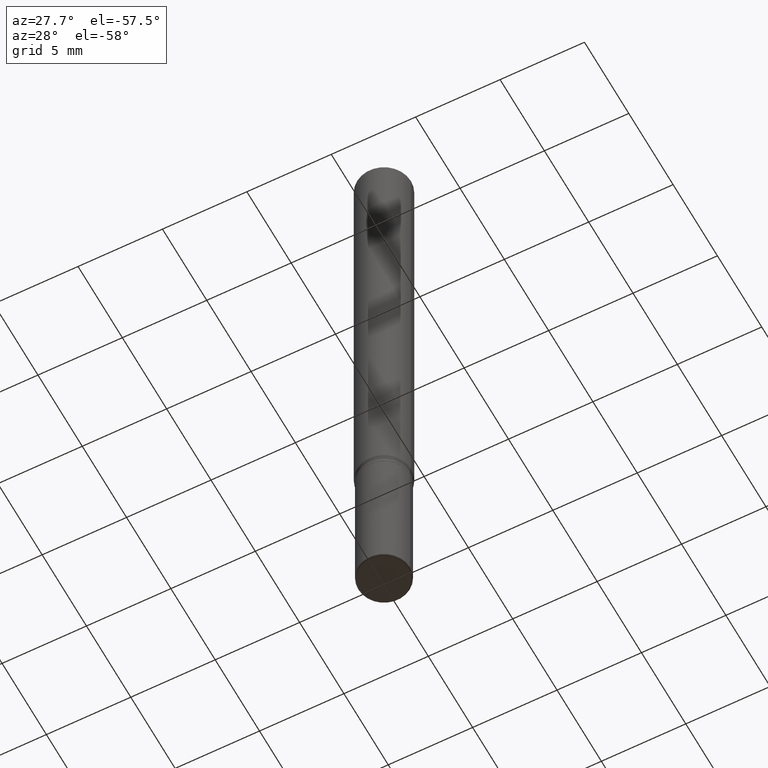
[diagram: clean part render]
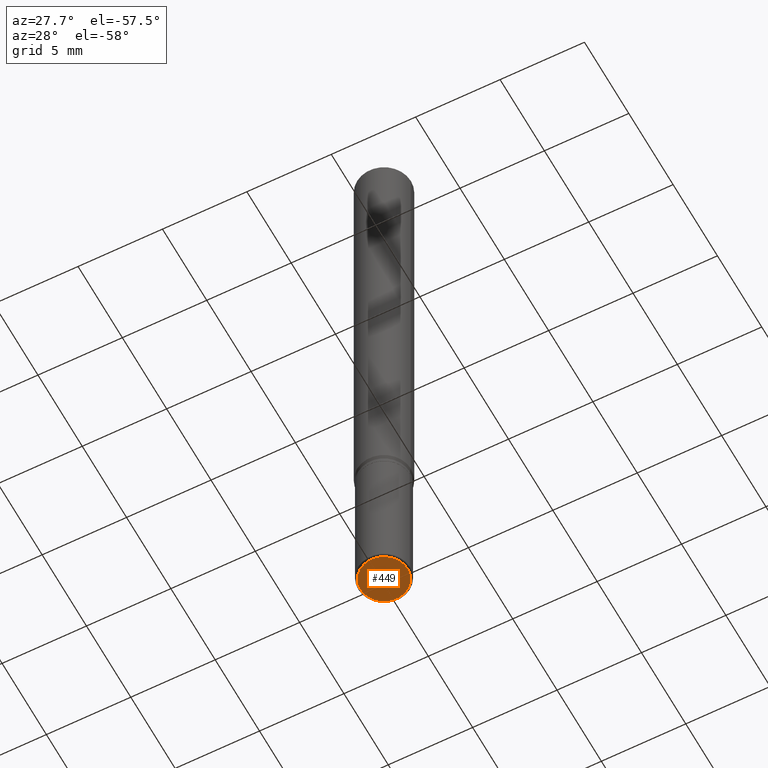
[diagram: same view with one face highlighted and labeled with its STEP entity id]
A machine part, auxiliary view. The second image highlights one B-rep face of the part: STEP entity #449.
In plain terms, the highlighted planar face has unit normal (-0, 0, 1).
Its self-contained STEP definition (entity closure, byte-faithful):
#10 = DIRECTION ( 'NONE',  ( 1.000000000000000000, -6.982962677686263555E-15, 0.000000000000000000 ) ) ;
#31 = DIRECTION ( 'NONE',  ( -2.445468806185136597E-29, 3.491481338843145583E-15, 1.000000000000000000 ) ) ;
#49 = AXIS2_PLACEMENT_3D ( 'NONE', #233, #259, #10 ) ;
#54 = FACE_OUTER_BOUND ( 'NONE', #419, .T. ) ;
#57 = CARTESIAN_POINT ( 'NONE',  ( 3.582686580359767159E-29, -5.359686688179454114E-15, -1.500000000000000444 ) ) ;
#118 = CARTESIAN_POINT ( 'NONE',  ( 3.668203209277706016E-29, -5.237222008264719754E-15, -1.500000000000000444 ) ) ;
#137 = DIRECTION ( 'NONE',  ( -2.438088387897960049E-29, 3.491481338843145188E-15, 1.000000000000000000 ) ) ;
#139 = CIRCLE ( 'NONE', #49, 0.05499999999999999334 ) ;
#173 = EDGE_CURVE ( 'NONE', #458, #284, #471, .T. ) ;
#233 = CARTESIAN_POINT ( 'NONE',  ( 3.668203209277706016E-29, -5.237222008264719754E-15, -1.500000000000000444 ) ) ;
#252 = CARTESIAN_POINT ( 'NONE',  ( 0.05499999999999999334, -5.621284955537463950E-15, -1.500000000000000444 ) ) ;
#259 = DIRECTION ( 'NONE',  ( -2.445468806185136597E-29, 3.491481338843145583E-15, 1.000000000000000000 ) ) ;
#284 = VERTEX_POINT ( 'NONE', #252 ) ;
#291 = PLANE ( 'NONE',  #346 ) ;
#334 = CARTESIAN_POINT ( 'NONE',  ( -0.05499999999999999334, -4.819931231855553084E-15, -1.500000000000000444 ) ) ;
#346 = AXIS2_PLACEMENT_3D ( 'NONE', #57, #137, #502 ) ;
#370 = AXIS2_PLACEMENT_3D ( 'NONE', #118, #31, #388 ) ;
#388 = DIRECTION ( 'NONE',  ( 1.000000000000000000, -6.982962677686263555E-15, 0.000000000000000000 ) ) ;
#419 = EDGE_LOOP ( 'NONE', ( #461, #514 ) ) ;
#449 = ADVANCED_FACE ( 'NONE', ( #54 ), #291, .F. ) ;
#458 = VERTEX_POINT ( 'NONE', #334 ) ;
#461 = ORIENTED_EDGE ( 'NONE', *, *, #481, .F. ) ;
#471 = CIRCLE ( 'NONE', #370, 0.05499999999999999334 ) ;
#481 = EDGE_CURVE ( 'NONE', #284, #458, #139, .T. ) ;
#502 = DIRECTION ( 'NONE',  ( 1.000000000000000000, -6.982962677686265922E-15, 4.876176775795935793E-29 ) ) ;
#514 = ORIENTED_EDGE ( 'NONE', *, *, #173, .F. ) ;